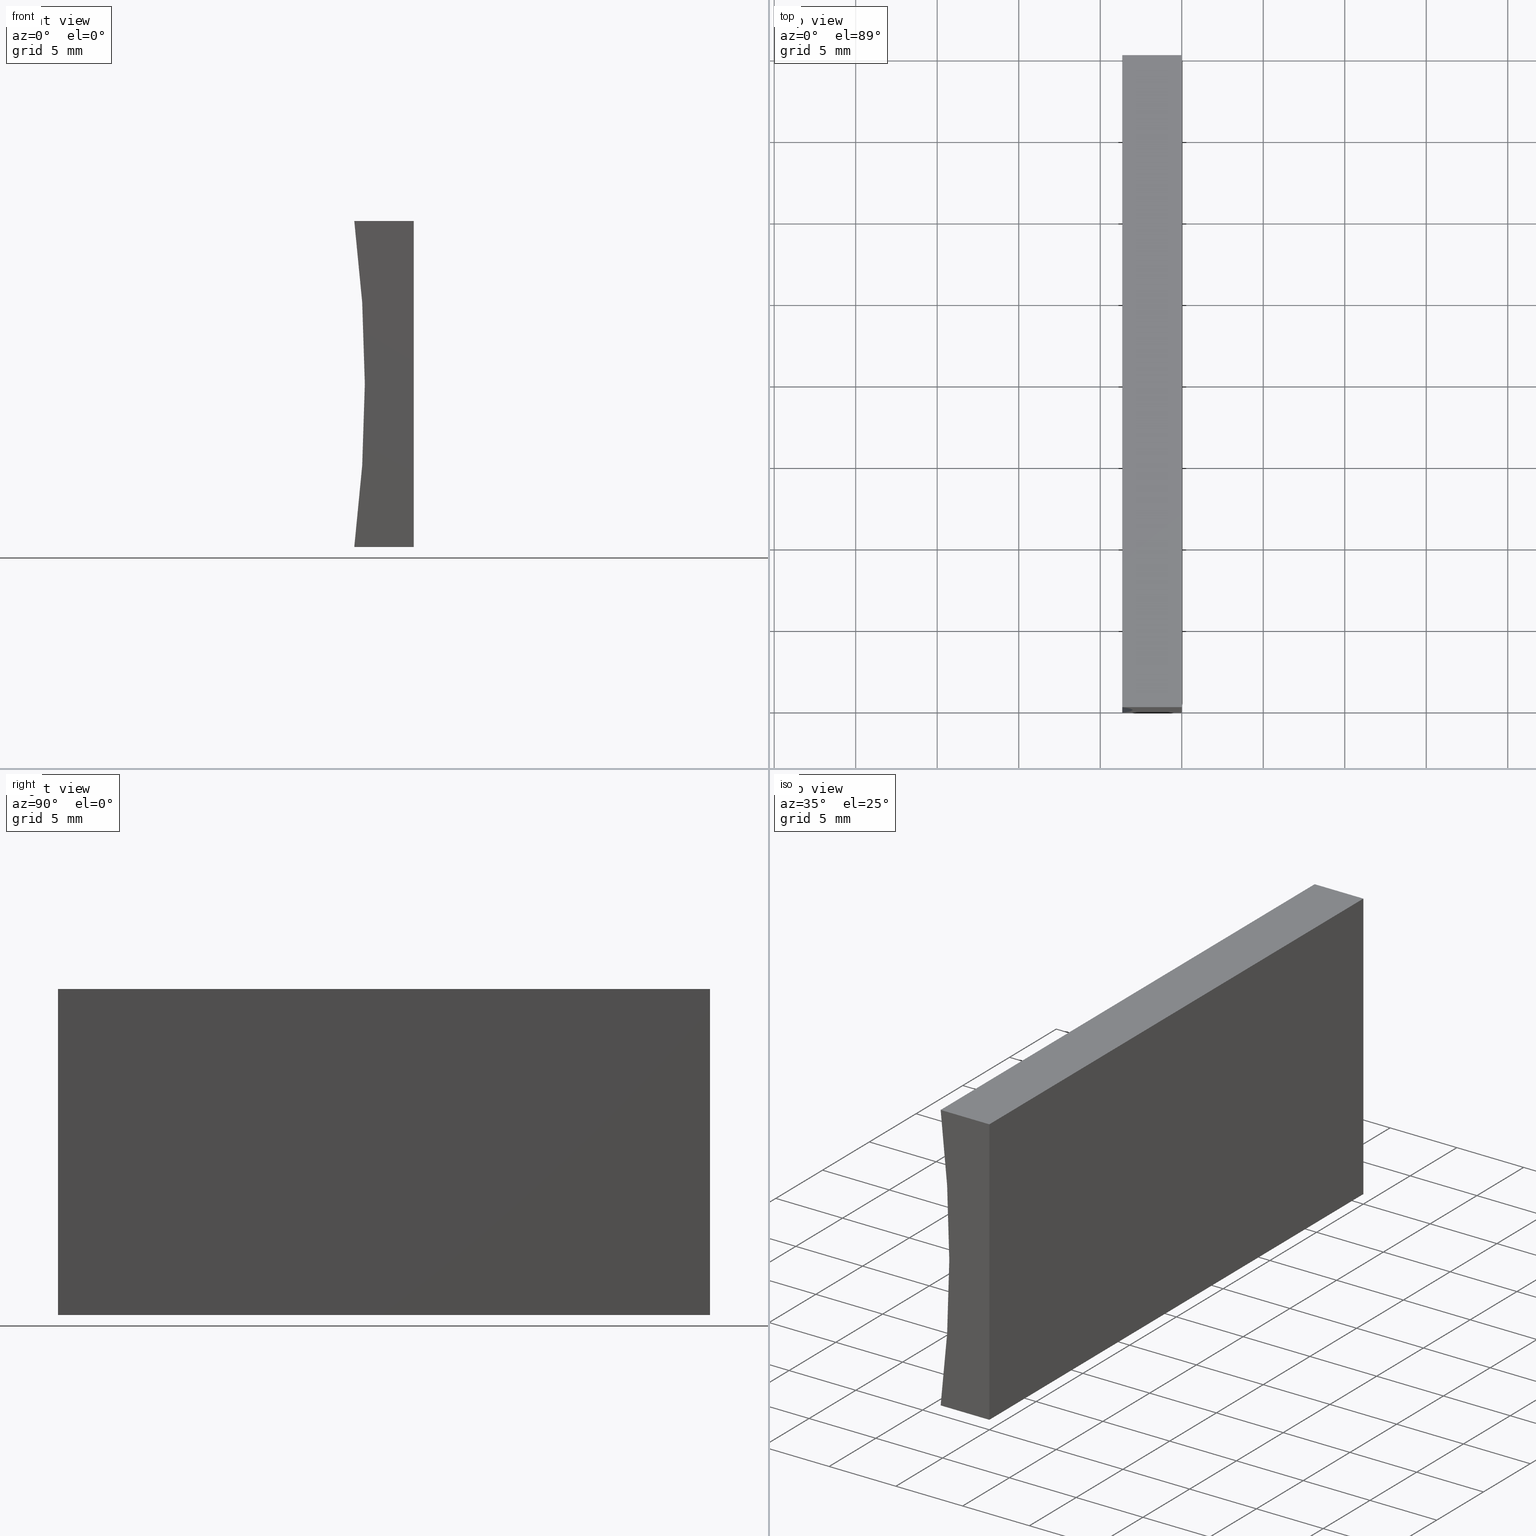
[diagram: canonical four-view strip — front | top / right | iso, engineering-drawing reading convention]
A machine part, canonical four-view strip (front | top / right | iso — engineering-drawing reading convention). The complete STEP part file that produces these views, byte-faithful:
ISO-10303-21;
HEADER;
FILE_DESCRIPTION (( 'STEP AP214' ),
    '1' );
FILE_NAME ('155358.STEP',
    '2019-06-28T07:13:18',
    ( 'user' ),
    ( '΢���й�' ),
    'SwSTEP 2.0',
    'SolidWorks 2016',
    '' );
FILE_SCHEMA (( 'AUTOMOTIVE_DESIGN' ));
ENDSEC;

DATA;
#1 = CIRCLE ( 'NONE', #204, 77.55000000000001100 ) ;
#2 = EDGE_CURVE ( 'NONE', #58, #117, #200, .T. ) ;
#3 = CARTESIAN_POINT ( 'NONE',  ( -3.647448026739704500, 0.0000000000000000000, 20.00000000000000400 ) ) ;
#4 =( NAMED_UNIT ( * ) PLANE_ANGLE_UNIT ( ) SI_UNIT ( $, .RADIAN. ) );
#5 = VECTOR ( 'NONE', #43, 1000.000000000000000 ) ;
#6 = DIRECTION ( 'NONE',  ( 0.0000000000000000000, 1.000000000000000000, 0.0000000000000000000 ) ) ;
#7 = DIRECTION ( 'NONE',  ( 0.0000000000000000000, -0.0000000000000000000, 1.000000000000000000 ) ) ;
#8 = AXIS2_PLACEMENT_3D ( 'NONE', #81, #159, #99 ) ;
#9 = SHAPE_DEFINITION_REPRESENTATION ( #11, #90 ) ;
#10 = VECTOR ( 'NONE', #49, 1000.000000000000000 ) ;
#11 = PRODUCT_DEFINITION_SHAPE ( 'NONE', 'NONE',  #106 ) ;
#12 = LINE ( 'NONE', #52, #54 ) ;
#13 = PRODUCT_RELATED_PRODUCT_CATEGORY ( 'part', '', ( #184 ) ) ;
#14 = CARTESIAN_POINT ( 'NONE',  ( -80.54999999999999700, 40.00000000000000000, 10.00000000000001200 ) ) ;
#15 = COLOUR_RGB ( '',1.000000000000000000, 1.000000000000000000, 1.000000000000000000 ) ;
#16 = LINE ( 'NONE', #134, #50 ) ;
#17 = DIRECTION ( 'NONE',  ( -1.000000000000000000, 0.0000000000000000000, -9.511984616419059400E-016 ) ) ;
#18 = VERTEX_POINT ( 'NONE', #139 ) ;
#19 = PRESENTATION_STYLE_ASSIGNMENT (( #164 ) ) ;
#20 = STYLED_ITEM ( 'NONE', ( #19 ), #126 ) ;
#21 = SURFACE_STYLE_FILL_AREA ( #63 ) ;
#22 = ORIENTED_EDGE ( 'NONE', *, *, #170, .T. ) ;
#23 = CARTESIAN_POINT ( 'NONE',  ( -80.54999999999999700, 40.00000000000000000, 10.00000000000001200 ) ) ;
#24 = EDGE_CURVE ( 'NONE', #36, #97, #16, .T. ) ;
#25 = CARTESIAN_POINT ( 'NONE',  ( -3.647448026739705400, 40.00000000000000000, 0.0000000000000000000 ) ) ;
#26 = CARTESIAN_POINT ( 'NONE',  ( -80.54999999999999700, 0.0000000000000000000, 10.00000000000001200 ) ) ;
#27 =( GEOMETRIC_REPRESENTATION_CONTEXT ( 3 ) GLOBAL_UNCERTAINTY_ASSIGNED_CONTEXT ( ( #71 ) ) GLOBAL_UNIT_ASSIGNED_CONTEXT ( ( #161, #174, #83 ) ) REPRESENTATION_CONTEXT ( 'NONE', 'WORKASPACE' ) );
#28 = CARTESIAN_POINT ( 'NONE',  ( -3.647448026739705400, 40.00000000000000000, 0.0000000000000000000 ) ) ;
#29 = VECTOR ( 'NONE', #67, 1000.000000000000000 ) ;
#30 = DIRECTION ( 'NONE',  ( -6.123233995736766000E-017, -0.0000000000000000000, -1.000000000000000000 ) ) ;
#31 = ORIENTED_EDGE ( 'NONE', *, *, #24, .T. ) ;
#32 = CARTESIAN_POINT ( 'NONE',  ( -80.54999999999999700, 0.0000000000000000000, 10.00000000000001200 ) ) ;
#33 = ORIENTED_EDGE ( 'NONE', *, *, #162, .T. ) ;
#34 = AXIS2_PLACEMENT_3D ( 'NONE', #202, #143, #190 ) ;
#35 = ORIENTED_EDGE ( 'NONE', *, *, #59, .T. ) ;
#36 = VERTEX_POINT ( 'NONE', #166 ) ;
#37 = DIRECTION ( 'NONE',  ( 1.000000000000000000, -0.0000000000000000000, -9.511984616419061300E-016 ) ) ;
#38 = VECTOR ( 'NONE', #168, 1000.000000000000000 ) ;
#39 = AXIS2_PLACEMENT_3D ( 'NONE', #133, #102, #121 ) ;
#40 = VECTOR ( 'NONE', #30, 1000.000000000000000 ) ;
#41 = UNCERTAINTY_MEASURE_WITH_UNIT (LENGTH_MEASURE( 1.000000000000000100E-005 ), #175, 'distance_accuracy_value', 'NONE');
#42 = ORIENTED_EDGE ( 'NONE', *, *, #24, .F. ) ;
#43 = DIRECTION ( 'NONE',  ( -0.0000000000000000000, -1.000000000000000000, -0.0000000000000000000 ) ) ;
#44 = AXIS2_PLACEMENT_3D ( 'NONE', #26, #179, #104 ) ;
#45 = ORIENTED_EDGE ( 'NONE', *, *, #60, .F. ) ;
#46 = ADVANCED_FACE ( 'NONE', ( #131 ), #167, .F. ) ;
#47 = FACE_OUTER_BOUND ( 'NONE', #72, .T. ) ;
#48 = ADVANCED_FACE ( 'NONE', ( #185 ), #146, .F. ) ;
#49 = DIRECTION ( 'NONE',  ( -0.0000000000000000000, -1.000000000000000000, -0.0000000000000000000 ) ) ;
#50 = VECTOR ( 'NONE', #124, 1000.000000000000000 ) ;
#51 = SURFACE_STYLE_FILL_AREA ( #192 ) ;
#52 = CARTESIAN_POINT ( 'NONE',  ( 1.224646799147353300E-015, 40.00000000000000000, 20.00000000000000000 ) ) ;
#53 = ORIENTED_EDGE ( 'NONE', *, *, #162, .F. ) ;
#54 = VECTOR ( 'NONE', #37, 1000.000000000000000 ) ;
#55 = MECHANICAL_DESIGN_GEOMETRIC_PRESENTATION_REPRESENTATION (  '', ( #20 ), #27 ) ;
#56 = EDGE_CURVE ( 'NONE', #97, #108, #138, .T. ) ;
#57 = CARTESIAN_POINT ( 'NONE',  ( 1.224646799147353300E-015, 0.0000000000000000000, 20.00000000000000000 ) ) ;
#58 = VERTEX_POINT ( 'NONE', #169 ) ;
#59 = EDGE_CURVE ( 'NONE', #18, #95, #196, .T. ) ;
#60 = EDGE_CURVE ( 'NONE', #95, #189, #86, .T. ) ;
#61 = FILL_AREA_STYLE_COLOUR ( '', #87 ) ;
#62 = CARTESIAN_POINT ( 'NONE',  ( 0.0000000000000000000, 0.0000000000000000000, 0.0000000000000000000 ) ) ;
#63 = FILL_AREA_STYLE ('',( #61 ) ) ;
#64 = CARTESIAN_POINT ( 'NONE',  ( 0.0000000000000000000, 40.00000000000000000, 0.0000000000000000000 ) ) ;
#65 = SURFACE_STYLE_USAGE ( .BOTH. , #191 ) ;
#66 = AXIS2_PLACEMENT_3D ( 'NONE', #14, #76, #82 ) ;
#67 = DIRECTION ( 'NONE',  ( 1.000000000000000000, -0.0000000000000000000, -9.511984616419061300E-016 ) ) ;
#68 = ORIENTED_EDGE ( 'NONE', *, *, #172, .T. ) ;
#69 = ORIENTED_EDGE ( 'NONE', *, *, #59, .F. ) ;
#70 = STYLED_ITEM ( 'NONE', ( #195 ), #90 ) ;
#71 = UNCERTAINTY_MEASURE_WITH_UNIT (LENGTH_MEASURE( 1.000000000000000100E-005 ), #161, 'distance_accuracy_value', 'NONE');
#72 = EDGE_LOOP ( 'NONE', ( #85, #105, #186, #147 ) ) ;
#73 = FACE_OUTER_BOUND ( 'NONE', #198, .T. ) ;
#74 =( GEOMETRIC_REPRESENTATION_CONTEXT ( 3 ) GLOBAL_UNCERTAINTY_ASSIGNED_CONTEXT ( ( #41 ) ) GLOBAL_UNIT_ASSIGNED_CONTEXT ( ( #175, #4, #79 ) ) REPRESENTATION_CONTEXT ( 'NONE', 'WORKASPACE' ) );
#75 = EDGE_LOOP ( 'NONE', ( #78, #91, #132, #31 ) ) ;
#76 = DIRECTION ( 'NONE',  ( -0.0000000000000000000, -1.000000000000000000, -0.0000000000000000000 ) ) ;
#77 = FACE_OUTER_BOUND ( 'NONE', #114, .T. ) ;
#78 = ORIENTED_EDGE ( 'NONE', *, *, #56, .T. ) ;
#79 =( NAMED_UNIT ( * ) SI_UNIT ( $, .STERADIAN. ) SOLID_ANGLE_UNIT ( ) );
#80 = DIRECTION ( 'NONE',  ( 0.0000000000000000000, 0.0000000000000000000, 1.000000000000000000 ) ) ;
#81 = CARTESIAN_POINT ( 'NONE',  ( -80.54999999999999700, 40.00000000000000000, 10.00000000000001200 ) ) ;
#82 = DIRECTION ( 'NONE',  ( 0.0000000000000000000, 0.0000000000000000000, -1.000000000000000000 ) ) ;
#83 =( NAMED_UNIT ( * ) SI_UNIT ( $, .STERADIAN. ) SOLID_ANGLE_UNIT ( ) );
#84 = ORIENTED_EDGE ( 'NONE', *, *, #2, .T. ) ;
#85 = ORIENTED_EDGE ( 'NONE', *, *, #150, .T. ) ;
#86 = LINE ( 'NONE', #25, #10 ) ;
#87 = COLOUR_RGB ( '',1.000000000000000000, 1.000000000000000000, 1.000000000000000000 ) ;
#88 = MECHANICAL_DESIGN_GEOMETRIC_PRESENTATION_REPRESENTATION (  '', ( #70 ), #74 ) ;
#89 = ORIENTED_EDGE ( 'NONE', *, *, #172, .F. ) ;
#90 = ADVANCED_BREP_SHAPE_REPRESENTATION ( '155358', ( #126, #128 ), #109 ) ;
#91 = ORIENTED_EDGE ( 'NONE', *, *, #130, .F. ) ;
#92 = CLOSED_SHELL ( 'NONE', ( #48, #137, #160, #46, #93, #145 ) ) ;
#93 = ADVANCED_FACE ( 'NONE', ( #73 ), #119, .T. ) ;
#94 = APPLICATION_PROTOCOL_DEFINITION ( 'draft international standard', 'automotive_design', 1998, #115 ) ;
#95 = VERTEX_POINT ( 'NONE', #28 ) ;
#96 =( LENGTH_UNIT ( ) NAMED_UNIT ( * ) SI_UNIT ( .MILLI., .METRE. ) );
#97 = VERTEX_POINT ( 'NONE', #135 ) ;
#98 = DIRECTION ( 'NONE',  ( 1.000000000000000000, 0.0000000000000000000, 0.0000000000000000000 ) ) ;
#99 = DIRECTION ( 'NONE',  ( 0.0000000000000000000, 0.0000000000000000000, 1.000000000000000000 ) ) ;
#100 = CARTESIAN_POINT ( 'NONE',  ( 0.0000000000000000000, 40.00000000000000000, 0.0000000000000000000 ) ) ;
#101 = CIRCLE ( 'NONE', #8, 77.55000000000001100 ) ;
#102 = DIRECTION ( 'NONE',  ( -9.511984616419059400E-016, 0.0000000000000000000, 1.000000000000000000 ) ) ;
#103 = DIRECTION ( 'NONE',  ( -6.123233995736766000E-017, -0.0000000000000000000, -1.000000000000000000 ) ) ;
#104 = DIRECTION ( 'NONE',  ( 0.0000000000000000000, -0.0000000000000000000, 1.000000000000000000 ) ) ;
#105 = ORIENTED_EDGE ( 'NONE', *, *, #2, .F. ) ;
#106 = PRODUCT_DEFINITION ( 'δ֪', '', #188, #181 ) ;
#107 = ORIENTED_EDGE ( 'NONE', *, *, #113, .T. ) ;
#108 = VERTEX_POINT ( 'NONE', #62 ) ;
#109 =( GEOMETRIC_REPRESENTATION_CONTEXT ( 3 ) GLOBAL_UNCERTAINTY_ASSIGNED_CONTEXT ( ( #176 ) ) GLOBAL_UNIT_ASSIGNED_CONTEXT ( ( #96, #177, #180 ) ) REPRESENTATION_CONTEXT ( 'NONE', 'WORKASPACE' ) );
#110 = VECTOR ( 'NONE', #103, 1000.000000000000000 ) ;
#111 = CARTESIAN_POINT ( 'NONE',  ( 0.0000000000000000000, 0.0000000000000000000, 0.0000000000000000000 ) ) ;
#112 = ORIENTED_EDGE ( 'NONE', *, *, #56, .F. ) ;
#113 = EDGE_CURVE ( 'NONE', #117, #97, #183, .T. ) ;
#114 = EDGE_LOOP ( 'NONE', ( #53, #112, #158, #203 ) ) ;
#115 = APPLICATION_CONTEXT ( 'automotive_design' ) ;
#116 = DIRECTION ( 'NONE',  ( -0.0000000000000000000, -1.000000000000000000, -0.0000000000000000000 ) ) ;
#117 = VERTEX_POINT ( 'NONE', #3 ) ;
#118 = PLANE ( 'NONE',  #34 ) ;
#119 = PLANE ( 'NONE',  #127 ) ;
#120 = CYLINDRICAL_SURFACE ( 'NONE', #66, 77.55000000000001100 ) ;
#121 = DIRECTION ( 'NONE',  ( 1.000000000000000000, 0.0000000000000000000, 9.511984616419059400E-016 ) ) ;
#122 = CARTESIAN_POINT ( 'NONE',  ( 0.0000000000000000000, 40.00000000000000000, 0.0000000000000000000 ) ) ;
#123 = ORIENTED_EDGE ( 'NONE', *, *, #130, .T. ) ;
#124 = DIRECTION ( 'NONE',  ( -0.0000000000000000000, -1.000000000000000000, -0.0000000000000000000 ) ) ;
#125 = DIRECTION ( 'NONE',  ( 0.0000000000000000000, 0.0000000000000000000, 1.000000000000000000 ) ) ;
#126 = MANIFOLD_SOLID_BREP ( '͹̨-����1', #92 ) ;
#127 = AXIS2_PLACEMENT_3D ( 'NONE', #23, #6, #7 ) ;
#128 = AXIS2_PLACEMENT_3D ( 'NONE', #173, #125, #98 ) ;
#129 = EDGE_LOOP ( 'NONE', ( #33, #45, #69, #123 ) ) ;
#130 = EDGE_CURVE ( 'NONE', #18, #108, #148, .T. ) ;
#131 = FACE_OUTER_BOUND ( 'NONE', #75, .T. ) ;
#132 = ORIENTED_EDGE ( 'NONE', *, *, #170, .F. ) ;
#133 = CARTESIAN_POINT ( 'NONE',  ( 0.0000000000000000000, 40.00000000000000000, 0.0000000000000000000 ) ) ;
#134 = CARTESIAN_POINT ( 'NONE',  ( 1.224646799147353300E-015, 40.00000000000000000, 20.00000000000000000 ) ) ;
#135 = CARTESIAN_POINT ( 'NONE',  ( 1.224646799147353300E-015, 0.0000000000000000000, 20.00000000000000000 ) ) ;
#136 = VECTOR ( 'NONE', #17, 1000.000000000000000 ) ;
#137 = ADVANCED_FACE ( 'NONE', ( #47 ), #120, .F. ) ;
#138 = LINE ( 'NONE', #111, #110 ) ;
#139 = CARTESIAN_POINT ( 'NONE',  ( 0.0000000000000000000, 40.00000000000000000, 0.0000000000000000000 ) ) ;
#140 = PRESENTATION_LAYER_ASSIGNMENT (  '', '', ( #70 ) ) ;
#141 = CARTESIAN_POINT ( 'NONE',  ( 0.0000000000000000000, 40.00000000000000000, 0.0000000000000000000 ) ) ;
#142 = CARTESIAN_POINT ( 'NONE',  ( -3.647448026739704500, 40.00000000000000000, 20.00000000000000400 ) ) ;
#143 = DIRECTION ( 'NONE',  ( -9.511984616419061300E-016, 0.0000000000000000000, -1.000000000000000000 ) ) ;
#144 = AXIS2_PLACEMENT_3D ( 'NONE', #122, #165, #149 ) ;
#145 = ADVANCED_FACE ( 'NONE', ( #77 ), #151, .F. ) ;
#146 = PLANE ( 'NONE',  #39 ) ;
#147 = ORIENTED_EDGE ( 'NONE', *, *, #60, .T. ) ;
#148 = LINE ( 'NONE', #64, #38 ) ;
#149 = DIRECTION ( 'NONE',  ( 6.123233995736766000E-017, 0.0000000000000000000, 1.000000000000000000 ) ) ;
#150 = EDGE_CURVE ( 'NONE', #189, #117, #1, .T. ) ;
#151 = PLANE ( 'NONE',  #44 ) ;
#152 = CARTESIAN_POINT ( 'NONE',  ( 0.0000000000000000000, 0.0000000000000000000, 0.0000000000000000000 ) ) ;
#153 = SURFACE_SIDE_STYLE ('',( #21 ) ) ;
#154 = EDGE_LOOP ( 'NONE', ( #107, #42, #89, #84 ) ) ;
#155 = CARTESIAN_POINT ( 'NONE',  ( -3.647448026739705400, 0.0000000000000000000, 0.0000000000000000000 ) ) ;
#156 = EDGE_CURVE ( 'NONE', #95, #58, #101, .T. ) ;
#157 = PRODUCT_CONTEXT ( 'NONE', #193, 'mechanical' ) ;
#158 = ORIENTED_EDGE ( 'NONE', *, *, #113, .F. ) ;
#159 = DIRECTION ( 'NONE',  ( -0.0000000000000000000, -1.000000000000000000, -0.0000000000000000000 ) ) ;
#160 = ADVANCED_FACE ( 'NONE', ( #182 ), #118, .F. ) ;
#161 =( LENGTH_UNIT ( ) NAMED_UNIT ( * ) SI_UNIT ( .MILLI., .METRE. ) );
#162 = EDGE_CURVE ( 'NONE', #108, #189, #201, .T. ) ;
#163 = DIRECTION ( 'NONE',  ( -1.000000000000000000, 0.0000000000000000000, -9.511984616419059400E-016 ) ) ;
#164 = SURFACE_STYLE_USAGE ( .BOTH. , #153 ) ;
#165 = DIRECTION ( 'NONE',  ( -1.000000000000000000, 0.0000000000000000000, 6.123233995736766000E-017 ) ) ;
#166 = CARTESIAN_POINT ( 'NONE',  ( 1.224646799147353300E-015, 40.00000000000000000, 20.00000000000000000 ) ) ;
#167 = PLANE ( 'NONE',  #144 ) ;
#168 = DIRECTION ( 'NONE',  ( -0.0000000000000000000, -1.000000000000000000, -0.0000000000000000000 ) ) ;
#169 = CARTESIAN_POINT ( 'NONE',  ( -3.647448026739704500, 40.00000000000000000, 20.00000000000000400 ) ) ;
#170 = EDGE_CURVE ( 'NONE', #36, #18, #199, .T. ) ;
#171 = VECTOR ( 'NONE', #163, 1000.000000000000000 ) ;
#172 = EDGE_CURVE ( 'NONE', #58, #36, #12, .T. ) ;
#173 = CARTESIAN_POINT ( 'NONE',  ( 0.0000000000000000000, 0.0000000000000000000, 0.0000000000000000000 ) ) ;
#174 =( NAMED_UNIT ( * ) PLANE_ANGLE_UNIT ( ) SI_UNIT ( $, .RADIAN. ) );
#175 =( LENGTH_UNIT ( ) NAMED_UNIT ( * ) SI_UNIT ( .MILLI., .METRE. ) );
#176 = UNCERTAINTY_MEASURE_WITH_UNIT (LENGTH_MEASURE( 1.000000000000000100E-005 ), #96, 'distance_accuracy_value', 'NONE');
#177 =( NAMED_UNIT ( * ) PLANE_ANGLE_UNIT ( ) SI_UNIT ( $, .RADIAN. ) );
#178 = APPLICATION_PROTOCOL_DEFINITION ( 'draft international standard', 'automotive_design', 1998, #193 ) ;
#179 = DIRECTION ( 'NONE',  ( 0.0000000000000000000, 1.000000000000000000, 0.0000000000000000000 ) ) ;
#180 =( NAMED_UNIT ( * ) SI_UNIT ( $, .STERADIAN. ) SOLID_ANGLE_UNIT ( ) );
#181 = PRODUCT_DEFINITION_CONTEXT ( 'detailed design', #115, 'design' ) ;
#182 = FACE_OUTER_BOUND ( 'NONE', #154, .T. ) ;
#183 = LINE ( 'NONE', #57, #29 ) ;
#184 = PRODUCT ( '155358', '155358', '', ( #157 ) ) ;
#185 = FACE_OUTER_BOUND ( 'NONE', #129, .T. ) ;
#186 = ORIENTED_EDGE ( 'NONE', *, *, #156, .F. ) ;
#187 = FILL_AREA_STYLE_COLOUR ( '', #15 ) ;
#188 = PRODUCT_DEFINITION_FORMATION_WITH_SPECIFIED_SOURCE ( '�κ�', '', #184, .NOT_KNOWN. ) ;
#189 = VERTEX_POINT ( 'NONE', #155 ) ;
#190 = DIRECTION ( 'NONE',  ( -1.000000000000000000, 0.0000000000000000000, 9.511984616419061300E-016 ) ) ;
#191 = SURFACE_SIDE_STYLE ('',( #51 ) ) ;
#192 = FILL_AREA_STYLE ('',( #187 ) ) ;
#193 = APPLICATION_CONTEXT ( 'automotive_design' ) ;
#194 = PRESENTATION_LAYER_ASSIGNMENT (  '', '', ( #20 ) ) ;
#195 = PRESENTATION_STYLE_ASSIGNMENT (( #65 ) ) ;
#196 = LINE ( 'NONE', #100, #171 ) ;
#197 = ORIENTED_EDGE ( 'NONE', *, *, #156, .T. ) ;
#198 = EDGE_LOOP ( 'NONE', ( #35, #197, #68, #22 ) ) ;
#199 = LINE ( 'NONE', #141, #40 ) ;
#200 = LINE ( 'NONE', #142, #5 ) ;
#201 = LINE ( 'NONE', #152, #136 ) ;
#202 = CARTESIAN_POINT ( 'NONE',  ( 1.224646799147353300E-015, 40.00000000000000000, 20.00000000000000000 ) ) ;
#203 = ORIENTED_EDGE ( 'NONE', *, *, #150, .F. ) ;
#204 = AXIS2_PLACEMENT_3D ( 'NONE', #32, #116, #80 ) ;
ENDSEC;
END-ISO-10303-21;
